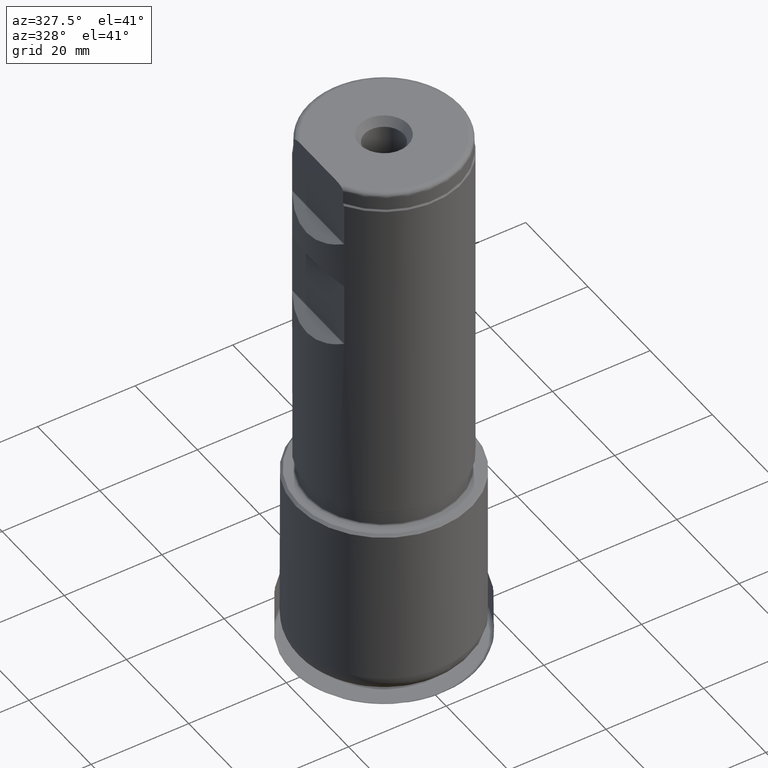
[diagram: clean part render]
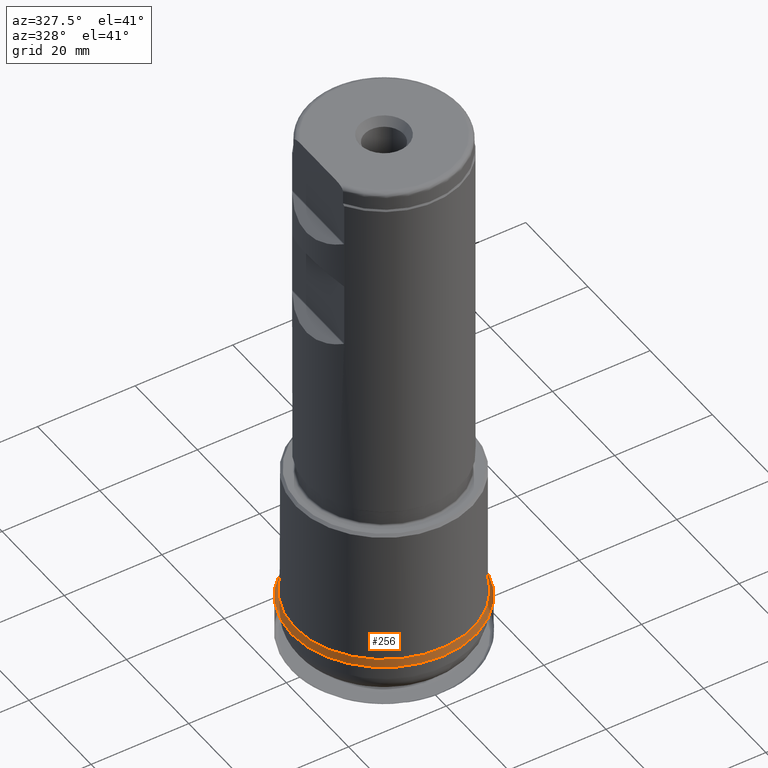
[diagram: same view with one face highlighted and labeled with its STEP entity id]
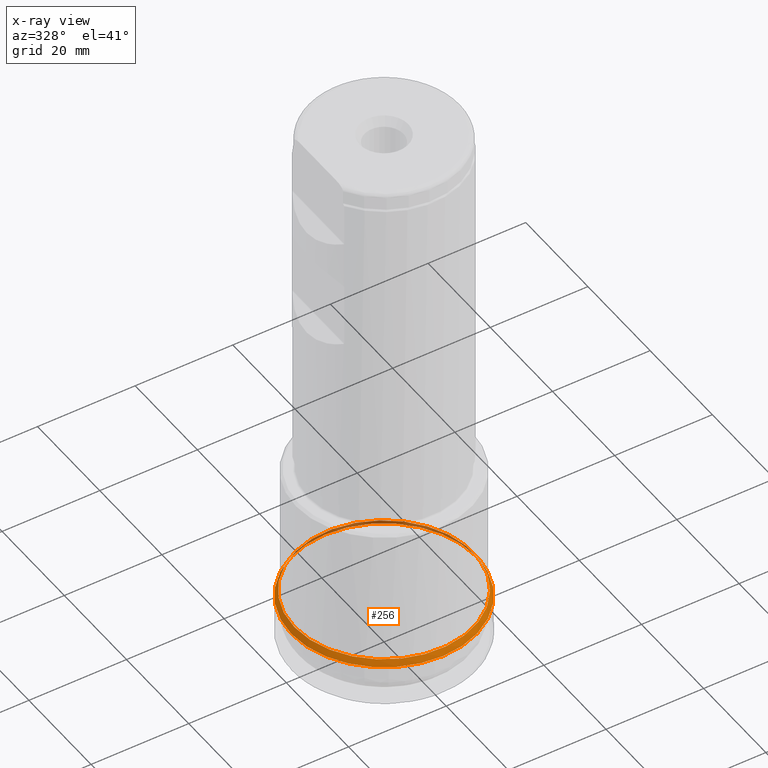
[diagram: x-ray of the same camera — body ghosted, the highlighted face saturated]
A machine part, auxiliary view. The second image highlights one B-rep face of the part: STEP entity #256.
The next image is the same camera in x-ray: the body ghosted, the highlighted face saturated — about 19% of this face is hidden behind the body in this view.
In plain terms, the highlighted face is a SurfaceOfRevolution surface.
Its self-contained STEP definition (entity closure, byte-faithful):
#116=SURFACE_OF_REVOLUTION('',#996,#154);
#154=AXIS1_PLACEMENT('',#2234,#1230);
#256=ADVANCED_FACE('',(#370,#371),#116,.F.);
#370=FACE_BOUND('',#492,.T.);
#371=FACE_BOUND('',#493,.T.);
#492=EDGE_LOOP('',(#660));
#493=EDGE_LOOP('',(#661));
#660=ORIENTED_EDGE('',*,*,#853,.T.);
#661=ORIENTED_EDGE('',*,*,#854,.F.);
#769=VERTEX_POINT('',#2218);
#770=VERTEX_POINT('',#2227);
#853=EDGE_CURVE('',#769,#769,#907,.T.);
#854=EDGE_CURVE('',#770,#770,#908,.T.);
#907=CIRCLE('',#1078,18.9648845873741);
#908=CIRCLE('',#1079,18.3268013595769);
#996=B_SPLINE_CURVE_WITH_KNOTS('',5,(#2228,#2229,#2230,#2231,#2232,#2233),
 .UNSPECIFIED.,.F.,.F.,(6,6),(0.,1.),.UNSPECIFIED.);
#1078=AXIS2_PLACEMENT_3D('',#2217,#1225,#1226);
#1079=AXIS2_PLACEMENT_3D('',#2226,#1228,#1229);
#1225=DIRECTION('',(0.,0.,-1.));
#1226=DIRECTION('',(-1.,0.,0.));
#1228=DIRECTION('',(0.,0.,-1.));
#1229=DIRECTION('',(-1.,0.,0.));
#1230=DIRECTION('',(0.,0.,-1.));
#2217=CARTESIAN_POINT('',(0.,0.,8.74780691137257));
#2218=CARTESIAN_POINT('',(-18.9648845873741,0.,8.74780691137257));
#2226=CARTESIAN_POINT('',(0.,0.,10.0083670323961));
#2227=CARTESIAN_POINT('',(-18.3268013595769,0.,10.0083670323961));
#2228=CARTESIAN_POINT('',(-9.16340067978849,-15.8714755475047,10.0083670323962));
#2229=CARTESIAN_POINT('',(-9.22686720269321,-15.9814027897554,9.75590988071794));
#2230=CARTESIAN_POINT('',(-9.2905111882608,-16.0916374063546,9.50363118113405));
#2231=CARTESIAN_POINT('',(-9.3543258446896,-16.2021676335569,9.2515248247661));
#2232=CARTESIAN_POINT('',(-9.41830485422208,-16.3129825286851,8.99958515176884));
#2233=CARTESIAN_POINT('',(-9.48244229368716,-16.4240718325059,8.74780691137257));
#2234=CARTESIAN_POINT('',(0.,0.,0.));